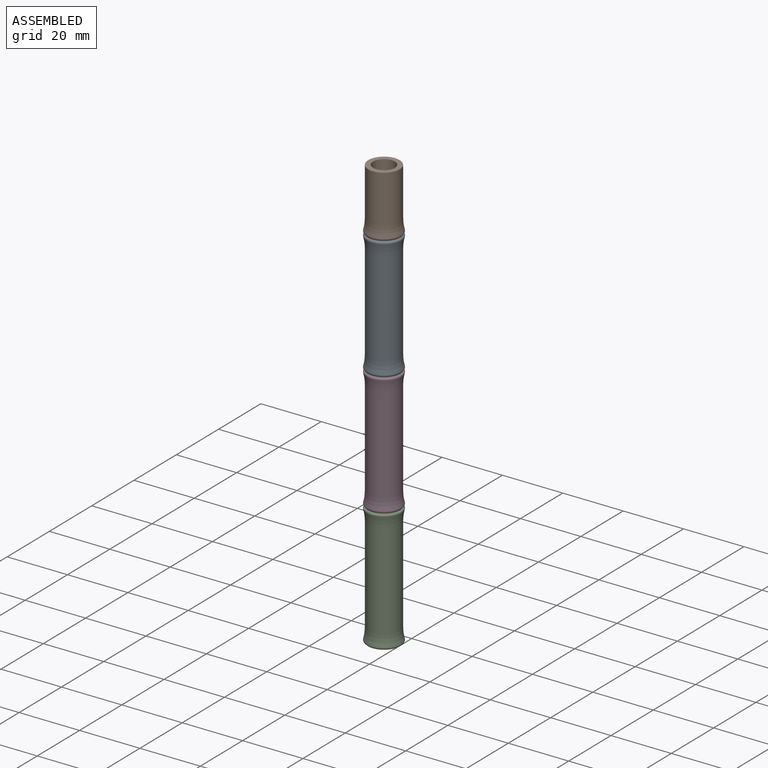
[diagram: assembled view]
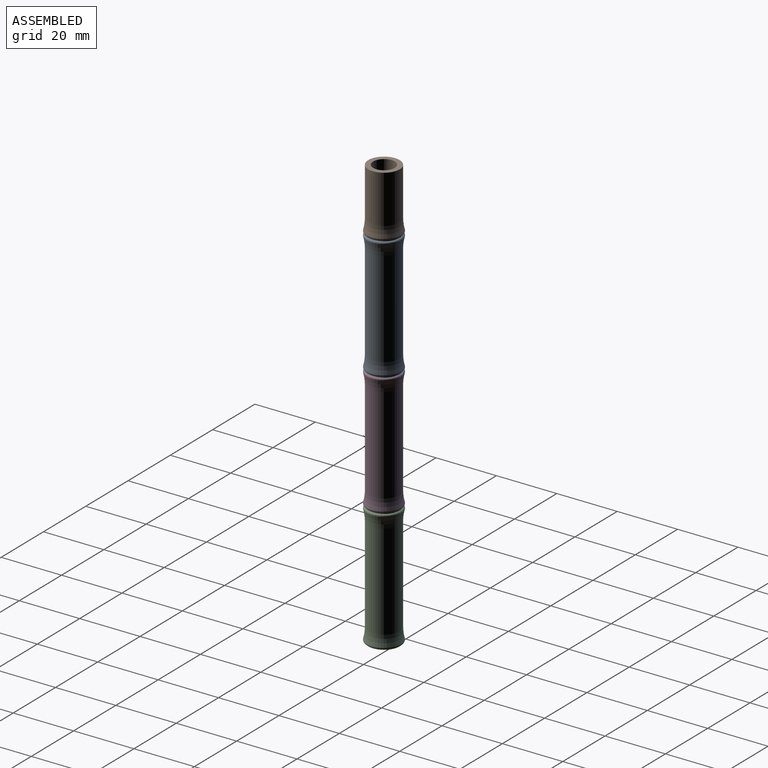
[diagram: assembled view, second angle]
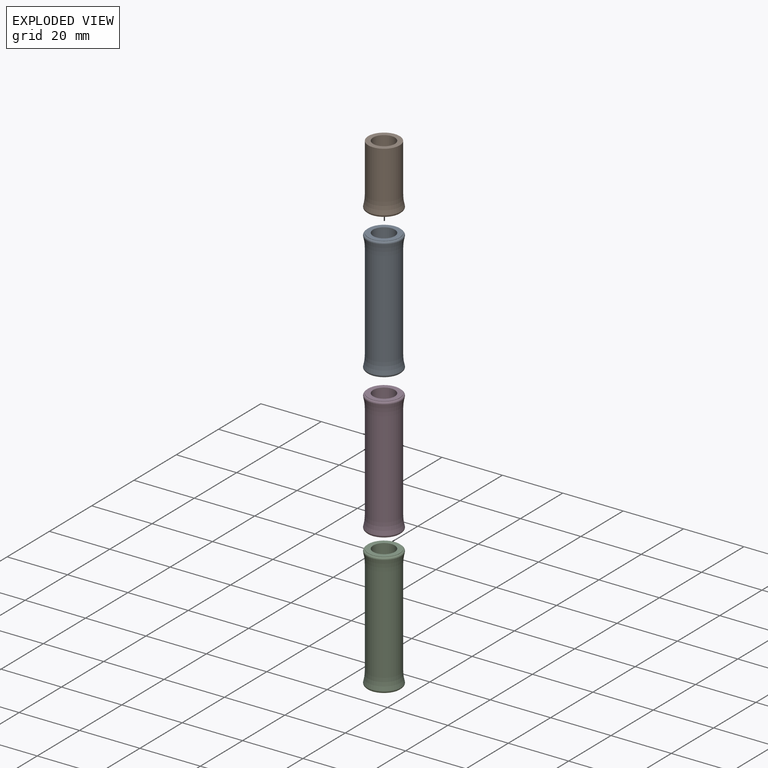
[diagram: exploded view]
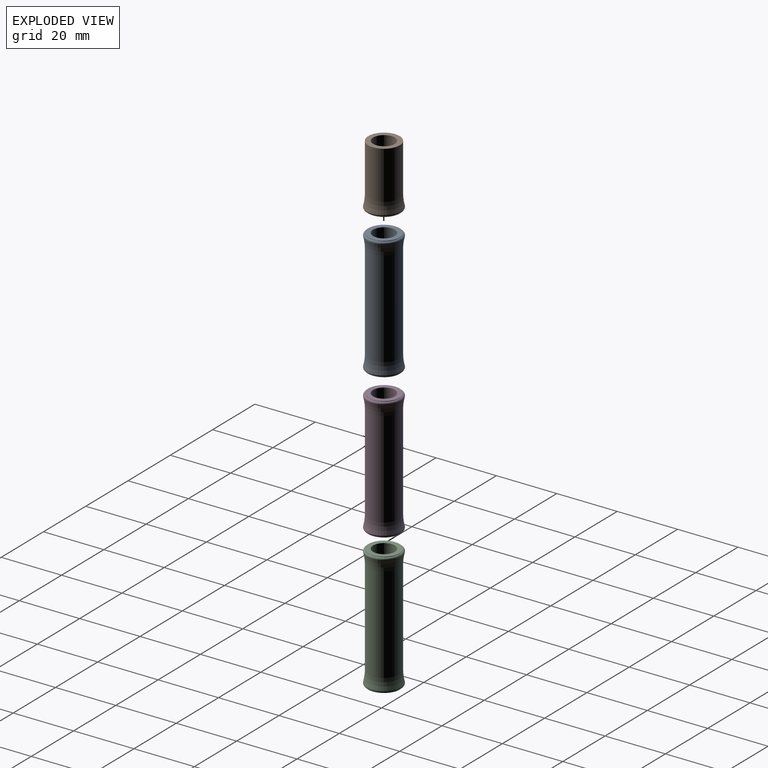
[diagram: exploded view, second angle]
ASSEMBLY  parts=4 mates=3
PART A: 10 faces, bbox 20x20x51.7 mm
  f0: cylinder r=3.6mm len=40.8mm, axis (0,0,1), area 922.9mm2, adj f5,f9
  f1: cylinder r=5.2mm len=31.8mm, axis (0,0,1), area 1038.9mm2, adj f2,f6
  f2: torus R=19.2mm, axis (0,0,1), area 123.8mm2, adj f1,f3
  f3: torus R=5.1mm, axis (0,0,1), area 34.9mm2, adj f2,f4
  f4: cylinder r=5.2mm len=10.4mm, axis (0,0,1), area 3.9mm2, adj f3,f5
  f5: plane 10.4x10.4mm, normal (0,0,1), area 44.2mm2, adj f0,f4
  f6: torus R=19.2mm, axis (0,0,-1), area 123.8mm2, adj f1,f7
  f7: torus R=5.1mm, axis (0,0,-1), area 34.9mm2, adj f6,f8
  f8: cylinder r=5.2mm len=10.4mm, axis (0,0,-1), area 3.9mm2, adj f7,f9
  f9: plane 10.4x10.4mm, normal (0,0,-1), area 44.2mm2, adj f0,f8
PART B: 7 faces, bbox 20x20x25.8 mm
  f0: cylinder r=3.6mm len=20.4mm, axis (0,0,1), area 461.4mm2, adj f1,f6
  f1: plane 10.4x10.4mm, normal (0,0,-1), area 44.2mm2, adj f0,f2
  f2: cylinder r=5.2mm len=15.9mm, axis (0,0,1), area 519.4mm2, adj f1,f3
  f3: torus R=19.2mm, axis (0,0,1), area 123.8mm2, adj f2,f4
  f4: torus R=5.1mm, axis (0,0,1), area 34.9mm2, adj f3,f5
  f5: cylinder r=5.2mm len=10.4mm, axis (0,0,1), area 3.9mm2, adj f4,f6
  f6: plane 10.4x10.4mm, normal (0,0,1), area 44.2mm2, adj f0,f5
PART C: same geometry as A
PART D: same geometry as A
PLACE A t=(38.84,0,143.21)mm
PLACE B rot(axis=(1,0,0),180deg) t=(38.84,0,143.21)mm
PLACE C t=(38.84,0,61.61)mm
PLACE D t=(38.84,0,102.41)mm
MATE fastened A.f0 <-> D.f0  axis (0,0,1) through (38.84,0,102.41)mm
MATE fastened D.f0 <-> C.f0  axis (0,0,1) through (38.84,0,61.61)mm
MATE fastened B.f0 <-> A.f0  axis (0,0,-1) through (38.84,0,143.21)mm
